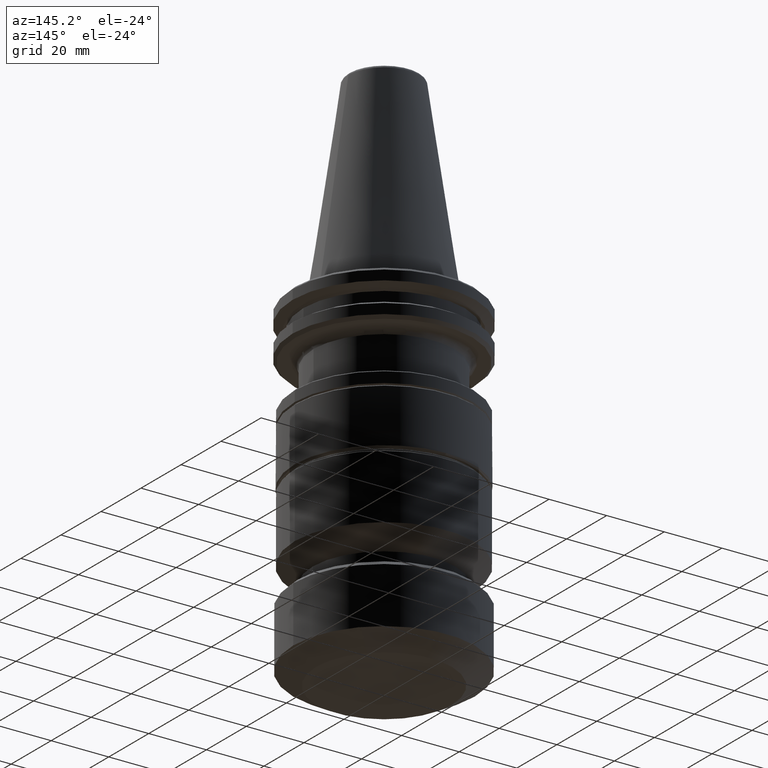
[diagram: clean part render]
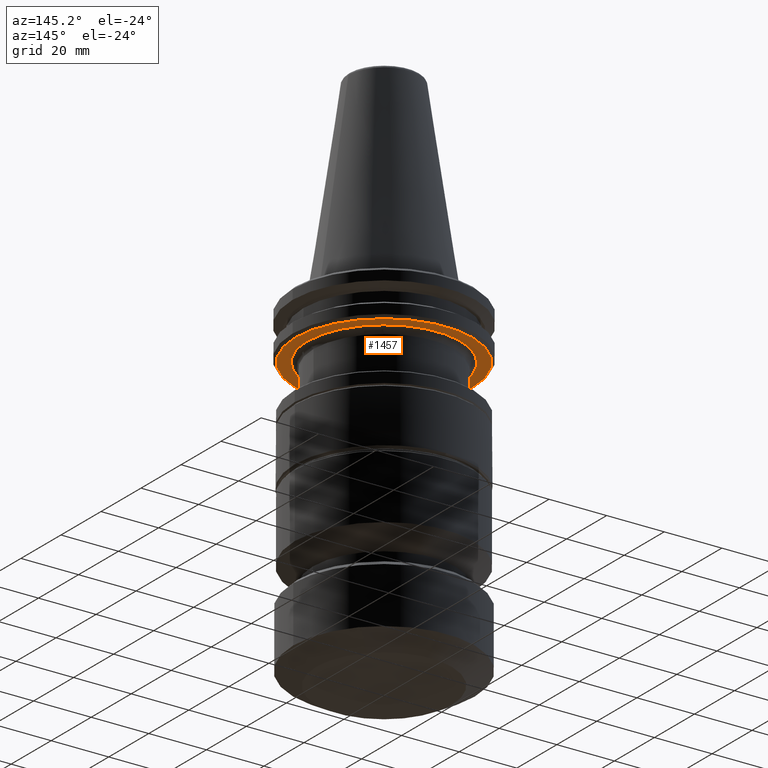
[diagram: same view with one face highlighted and labeled with its STEP entity id]
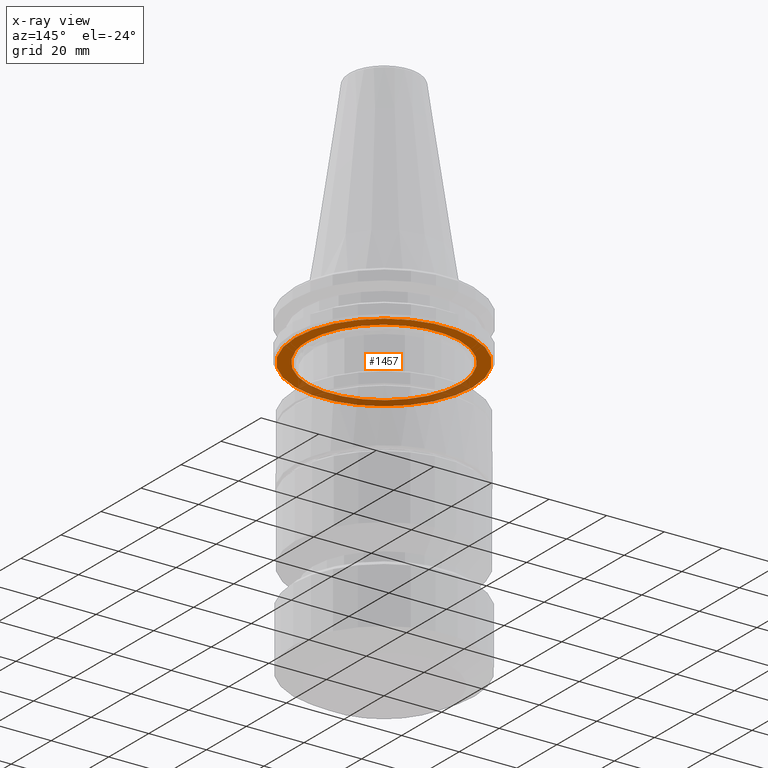
[diagram: x-ray of the same camera — body ghosted, the highlighted face saturated]
A machine part, auxiliary view. The second image highlights one B-rep face of the part: STEP entity #1457.
The next image is the same camera in x-ray: the body ghosted, the highlighted face saturated — about 32% of this face is hidden behind the body in this view.
In plain terms, the highlighted planar face has unit normal (0, -0, 1).
Its self-contained STEP definition (entity closure, byte-faithful):
#53 = B_SPLINE_CURVE_WITH_KNOTS ( 'NONE', 3,
 ( #624, #625, #614, #610, #609, #605, #602, #600, #597, #593, #589, #588, #584, #582, #579, #574, #572, #571, #569, #565, #564, #559, #555, #554, #550, #549, #548, #545, #542, #540, #537, #534, #533, #528 ),
 .UNSPECIFIED., .F., .F.,
 ( 4, 2, 2, 2, 2, 2, 2, 2, 2, 2, 2, 2, 2, 2, 2, 2, 4 ),
 ( 0.0000000000000000000, 0.06249999999999997200, 0.1249999999999999400, 0.1874999999999999200, 0.2499999999999998900, 0.3124999999999998900, 0.3749999999999998900, 0.4374999999999998900, 0.5000000000000000000, 0.5625000000000000000, 0.6249999999999998900, 0.6874999999999998900, 0.7499999999999998900, 0.8124999999999998900, 0.8749999999999998900, 0.9375000000000000000, 1.000000000000000000 ),
 .UNSPECIFIED. ) ;
#65 = DIRECTION ( 'NONE',  ( 1.000000000000000000, 0.0000000000000000000, 0.0000000000000000000 ) ) ;
#78 = ORIENTED_EDGE ( 'NONE', *, *, #1505, .F. ) ;
#110 = CARTESIAN_POINT ( 'NONE',  ( -26.50000000000000400, 0.0000000000000000000, -19.10000000000000500 ) ) ;
#111 = CARTESIAN_POINT ( 'NONE',  ( -26.50000000000000400, 1.735447729476592200, -19.10000000000017600 ) ) ;
#113 = CARTESIAN_POINT ( 'NONE',  ( -26.32955842497401400, 3.466705107187597600, -19.10000000000018300 ) ) ;
#115 = CARTESIAN_POINT ( 'NONE',  ( -25.65206143639720800, 6.873081959667204400, -19.10000000000017900 ) ) ;
#116 = CARTESIAN_POINT ( 'NONE',  ( -25.14732272704998600, 8.536735372245013700, -19.10000000000018300 ) ) ;
#117 = CARTESIAN_POINT ( 'NONE',  ( -23.81829249604821500, 11.74548654310474500, -19.10000000000017600 ) ) ;
#118 = CARTESIAN_POINT ( 'NONE',  ( -22.99868951952041100, 13.27870368443787200, -19.10000000000018300 ) ) ;
#119 = CIRCLE ( 'NONE', #895, 30.75000000000049700 ) ;
#120 = CARTESIAN_POINT ( 'NONE',  ( -21.06919993251449300, 16.16651866560105000, -19.10000000000017600 ) ) ;
#122 = CARTESIAN_POINT ( 'NONE',  ( -19.96622957151685500, 17.51037886088747400, -19.10000000000018300 ) ) ;
#125 = CARTESIAN_POINT ( 'NONE',  ( -17.51042983137016800, 19.96628054199954100, -19.10000000000017600 ) ) ;
#126 = CARTESIAN_POINT ( 'NONE',  ( -16.16647861835407000, 21.06913999755564900, -19.10000000000017900 ) ) ;
#129 = CARTESIAN_POINT ( 'NONE',  ( -13.27874373168484800, 22.99874945447925600, -19.10000000000017900 ) ) ;
#133 = CARTESIAN_POINT ( 'NONE',  ( -11.74545895812620300, 23.81822589987339700, -19.10000000000017900 ) ) ;
#135 = CARTESIAN_POINT ( 'NONE',  ( -8.536762957223567500, 25.14738932322480700, -19.10000000000017900 ) ) ;
#136 = CARTESIAN_POINT ( 'NONE',  ( -6.873067897001494200, 25.65199073829716500, -19.10000000000017600 ) ) ;
#138 = CARTESIAN_POINT ( 'NONE',  ( -3.466719169853307700, 26.32962912307405300, -19.10000000000017900 ) ) ;
#142 = CARTESIAN_POINT ( 'NONE',  ( -1.736548691118164500, 26.49996395842267900, -19.10000000000017600 ) ) ;
#144 = CARTESIAN_POINT ( 'NONE',  ( 1.736548691118165600, 26.50003604157732100, -19.10000000000017600 ) ) ;
#145 = CARTESIAN_POINT ( 'NONE',  ( 3.466705107190972700, 26.32955842497361200, -19.10000000000017900 ) ) ;
#147 = CARTESIAN_POINT ( 'NONE',  ( 6.873081959663822200, 25.65206143639761300, -19.10000000000017900 ) ) ;
#148 = CARTESIAN_POINT ( 'NONE',  ( 8.536735372258961600, 25.14732272704534900, -19.10000000000017600 ) ) ;
#150 = CARTESIAN_POINT ( 'NONE',  ( 11.74548654309079900, 23.81829249605285900, -19.10000000000017600 ) ) ;
#151 = CARTESIAN_POINT ( 'NONE',  ( 13.27870368442042100, 22.99868951953219200, -19.10000000000017600 ) ) ;
#153 = CARTESIAN_POINT ( 'NONE',  ( 16.16651866561849000, 21.06919993250272000, -19.10000000000017900 ) ) ;
#158 = CARTESIAN_POINT ( 'NONE',  ( 17.51037886087187100, 19.96622957153246600, -19.10000000000018600 ) ) ;
#160 = CARTESIAN_POINT ( 'NONE',  ( 19.96628054201515600, 17.51042983135456400, -19.10000000000018300 ) ) ;
#161 = CARTESIAN_POINT ( 'NONE',  ( 21.06913999752351800, 16.16647861840197100, -19.10000000000017900 ) ) ;
#164 = CARTESIAN_POINT ( 'NONE',  ( 22.99874945451139800, 13.27874373163694700, -19.10000000000017900 ) ) ;
#166 = CARTESIAN_POINT ( 'NONE',  ( 23.81822589988584600, 11.74545895809559500, -19.10000000000018300 ) ) ;
#167 = CARTESIAN_POINT ( 'NONE',  ( 25.14738932321236200, 8.536762957254177700, -19.10000000000017900 ) ) ;
#168 = CARTESIAN_POINT ( 'NONE',  ( 25.65199073829197500, 6.873067897008848300, -19.10000000000017200 ) ) ;
#171 = CARTESIAN_POINT ( 'NONE',  ( 26.32962912307924000, 3.466719169845968300, -19.10000000000017900 ) ) ;
#182 = CARTESIAN_POINT ( 'NONE',  ( 26.50000000000000400, 3.245314017740486200E-015, -19.10000000000017900 ) ) ;
#185 = CARTESIAN_POINT ( 'NONE',  ( 26.50000000000000400, 1.736182832676645500, -19.10000000000017900 ) ) ;
#239 = CARTESIAN_POINT ( 'NONE',  ( 26.50000000000000400, 3.245314017740486200E-015, -19.10000000000017900 ) ) ;
#347 = CIRCLE ( 'NONE', #1860, 30.75000000000049700 ) ;
#354 = DIRECTION ( 'NONE',  ( 1.000000000000000000, 0.0000000000000000000, 0.0000000000000000000 ) ) ;
#401 = FACE_BOUND ( 'NONE', #1033, .T. ) ;
#436 = DIRECTION ( 'NONE',  ( -0.0000000000000000000, -0.0000000000000000000, 1.000000000000000000 ) ) ;
#449 = ORIENTED_EDGE ( 'NONE', *, *, #2022, .F. ) ;
#502 = CARTESIAN_POINT ( 'NONE',  ( 0.0000000000000000000, 0.0000000000000000000, -19.10000000000017200 ) ) ;
#528 = CARTESIAN_POINT ( 'NONE',  ( 26.50000000000000400, 3.245314017740486200E-015, -19.10000000000017900 ) ) ;
#533 = CARTESIAN_POINT ( 'NONE',  ( 26.50000000000000400, -1.735447729467362900, -19.10000000000017900 ) ) ;
#534 = CARTESIAN_POINT ( 'NONE',  ( 26.32955842497753100, -3.466705107161077500, -19.10000000000017900 ) ) ;
#537 = CARTESIAN_POINT ( 'NONE',  ( 25.65206143639368400, -6.873081959693730700, -19.10000000000017900 ) ) ;
#540 = CARTESIAN_POINT ( 'NONE',  ( 25.14732272706920600, -8.536735372191445800, -19.10000000000017900 ) ) ;
#542 = CARTESIAN_POINT ( 'NONE',  ( 23.81829249602901300, -11.74548654315830200, -19.10000000000017900 ) ) ;
#545 = CARTESIAN_POINT ( 'NONE',  ( 22.99868951951213000, -13.27870368444496800, -19.10000000000017600 ) ) ;
#548 = CARTESIAN_POINT ( 'NONE',  ( 21.06919993252278500, -16.16651866559393400, -19.10000000000017900 ) ) ;
#549 = CARTESIAN_POINT ( 'NONE',  ( 19.96622957155751300, -17.51037886083586400, -19.10000000000017600 ) ) ;
#550 = CARTESIAN_POINT ( 'NONE',  ( 17.51042983132952500, -19.96628054205115200, -19.10000000000017900 ) ) ;
#554 = CARTESIAN_POINT ( 'NONE',  ( 16.16645277909040600, -21.06916120418164000, -19.10000000000017600 ) ) ;
#555 = CARTESIAN_POINT ( 'NONE',  ( 13.27876957094851600, -22.99872824785326100, -19.10000000000017900 ) ) ;
#559 = CARTESIAN_POINT ( 'NONE',  ( 11.74542810052826900, -23.81823868226065600, -19.10000000000017600 ) ) ;
#564 = CARTESIAN_POINT ( 'NONE',  ( 8.536793814821519900, -25.14737654083753400, -19.10000000000017600 ) ) ;
#565 = CARTESIAN_POINT ( 'NONE',  ( 6.873003150891888100, -25.65200695908025700, -19.10000000000017900 ) ) ;
#569 = CARTESIAN_POINT ( 'NONE',  ( 3.466783915962929000, -26.32961290229096500, -19.10000000000017900 ) ) ;
#571 = CARTESIAN_POINT ( 'NONE',  ( 1.736482024538417600, -26.49996723618811600, -19.10000000000017900 ) ) ;
#572 = CARTESIAN_POINT ( 'NONE',  ( -1.736482024538408500, -26.50003276381189500, -19.10000000000018300 ) ) ;
#574 = CARTESIAN_POINT ( 'NONE',  ( -3.466771132181369900, -26.32954863376263100, -19.10000000000018600 ) ) ;
#579 = CARTESIAN_POINT ( 'NONE',  ( -6.873015934673432500, -25.65207122760859400, -19.10000000000017900 ) ) ;
#582 = CARTESIAN_POINT ( 'NONE',  ( -8.536767360311902300, -25.14731302430897100, -19.10000000000017600 ) ) ;
#584 = CARTESIAN_POINT ( 'NONE',  ( -11.74545455503787000, -23.81830219878923000, -19.10000000000017600 ) ) ;
#588 = CARTESIAN_POINT ( 'NONE',  ( -13.27876093664889400, -22.99865520694978500, -19.10000000000017600 ) ) ;
#589 = CARTESIAN_POINT ( 'NONE',  ( -16.16646141339000300, -21.06923424508512700, -19.10000000000017600 ) ) ;
#593 = CARTESIAN_POINT ( 'NONE',  ( -17.51040247894483300, -19.96620595443986400, -19.10000000000017600 ) ) ;
#597 = CARTESIAN_POINT ( 'NONE',  ( -19.96625692394218600, -17.51045344844716600, -19.10000000000017900 ) ) ;
#600 = CARTESIAN_POINT ( 'NONE',  ( -21.06916120416194400, -16.16645277911985800, -19.10000000000016800 ) ) ;
#602 = CARTESIAN_POINT ( 'NONE',  ( -22.99872824787294700, -13.27876957091905500, -19.10000000000017600 ) ) ;
#605 = CARTESIAN_POINT ( 'NONE',  ( -23.81822589989994300, -11.74545895806538600, -19.10000000000017600 ) ) ;
#609 = CARTESIAN_POINT ( 'NONE',  ( -25.14738932319823700, -8.536762957284402400, -19.10000000000017600 ) ) ;
#610 = CARTESIAN_POINT ( 'NONE',  ( -25.65199725504679400, -6.873035138631800900, -19.10000000000017200 ) ) ;
#614 = CARTESIAN_POINT ( 'NONE',  ( -26.32962260632440600, -3.466751928223019700, -19.10000000000017900 ) ) ;
#617 = VERTEX_POINT ( 'NONE', #1638 ) ;
#624 = CARTESIAN_POINT ( 'NONE',  ( -26.50000000000000400, 0.0000000000000000000, -19.10000000000000500 ) ) ;
#625 = CARTESIAN_POINT ( 'NONE',  ( -26.50000000000000700, -1.736149432306418800, -19.10000000000017600 ) ) ;
#657 = CARTESIAN_POINT ( 'NONE',  ( 0.0000000000000000000, 8.620024296886324200E-015, -19.10000000000017900 ) ) ;
#805 = ORIENTED_EDGE ( 'NONE', *, *, #903, .T. ) ;
#839 = DIRECTION ( 'NONE',  ( 0.0000000000000000000, -0.0000000000000000000, 1.000000000000000000 ) ) ;
#841 = FACE_OUTER_BOUND ( 'NONE', #1343, .T. ) ;
#895 = AXIS2_PLACEMENT_3D ( 'NONE', #1288, #1986, #354 ) ;
#903 = EDGE_CURVE ( 'NONE', #617, #1142, #53, .T. ) ;
#1033 = EDGE_LOOP ( 'NONE', ( #1136, #805 ) ) ;
#1039 = B_SPLINE_CURVE_WITH_KNOTS ( 'NONE', 3,
 ( #182, #185, #171, #168, #167, #166, #164, #161, #160, #158, #153, #151, #150, #148, #147, #145, #144, #142, #138, #136, #135, #133, #129, #126, #125, #122, #120, #118, #117, #116, #115, #113, #111, #110 ),
 .UNSPECIFIED., .F., .F.,
 ( 4, 2, 2, 2, 2, 2, 2, 2, 2, 2, 2, 2, 2, 2, 2, 2, 4 ),
 ( 0.0000000000000000000, 0.06249999999999991700, 0.1249999999999998300, 0.1874999999999997500, 0.2499999999999997200, 0.3124999999999996700, 0.3749999999999997200, 0.4374999999999997200, 0.4999999999999997800, 0.5624999999999997800, 0.6249999999999997800, 0.6874999999999998900, 0.7499999999999998900, 0.8124999999999998900, 0.8749999999999998900, 0.9375000000000000000, 1.000000000000000000 ),
 .UNSPECIFIED. ) ;
#1056 = CARTESIAN_POINT ( 'NONE',  ( 30.75000000000049700, 0.0000000000000000000, -19.10000000000017200 ) ) ;
#1136 = ORIENTED_EDGE ( 'NONE', *, *, #1177, .T. ) ;
#1142 = VERTEX_POINT ( 'NONE', #239 ) ;
#1177 = EDGE_CURVE ( 'NONE', #1142, #617, #1039, .T. ) ;
#1288 = CARTESIAN_POINT ( 'NONE',  ( 0.0000000000000000000, 0.0000000000000000000, -19.10000000000017200 ) ) ;
#1343 = EDGE_LOOP ( 'NONE', ( #449, #78 ) ) ;
#1457 = ADVANCED_FACE ( 'NONE', ( #401, #841 ), #1952, .F. ) ;
#1505 = EDGE_CURVE ( 'NONE', #1977, #1953, #347, .T. ) ;
#1638 = CARTESIAN_POINT ( 'NONE',  ( -26.50000000000000400, 0.0000000000000000000, -19.10000000000000500 ) ) ;
#1777 = AXIS2_PLACEMENT_3D ( 'NONE', #657, #839, #1926 ) ;
#1860 = AXIS2_PLACEMENT_3D ( 'NONE', #502, #436, #65 ) ;
#1926 = DIRECTION ( 'NONE',  ( 1.000000000000000000, 0.0000000000000000000, 0.0000000000000000000 ) ) ;
#1952 = PLANE ( 'NONE',  #1777 ) ;
#1953 = VERTEX_POINT ( 'NONE', #1056 ) ;
#1964 = CARTESIAN_POINT ( 'NONE',  ( -30.75000000000049700, 3.827021247335519900E-015, -19.10000000000017200 ) ) ;
#1977 = VERTEX_POINT ( 'NONE', #1964 ) ;
#1986 = DIRECTION ( 'NONE',  ( -0.0000000000000000000, -0.0000000000000000000, 1.000000000000000000 ) ) ;
#2022 = EDGE_CURVE ( 'NONE', #1953, #1977, #119, .T. ) ;